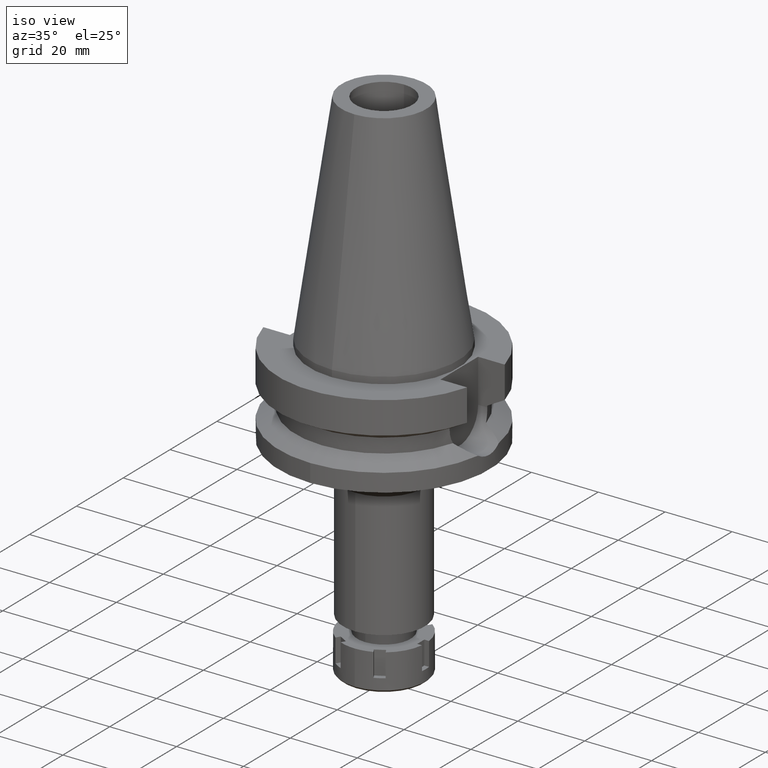
[diagram: clean part render]
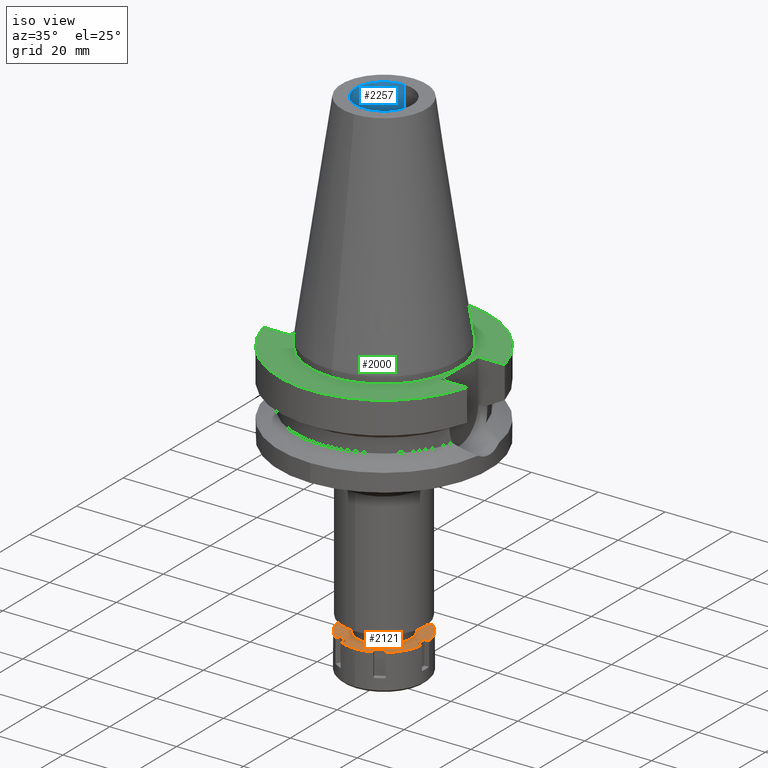
[diagram: same view with three faces highlighted in distinct colors, each labeled with its STEP entity id]
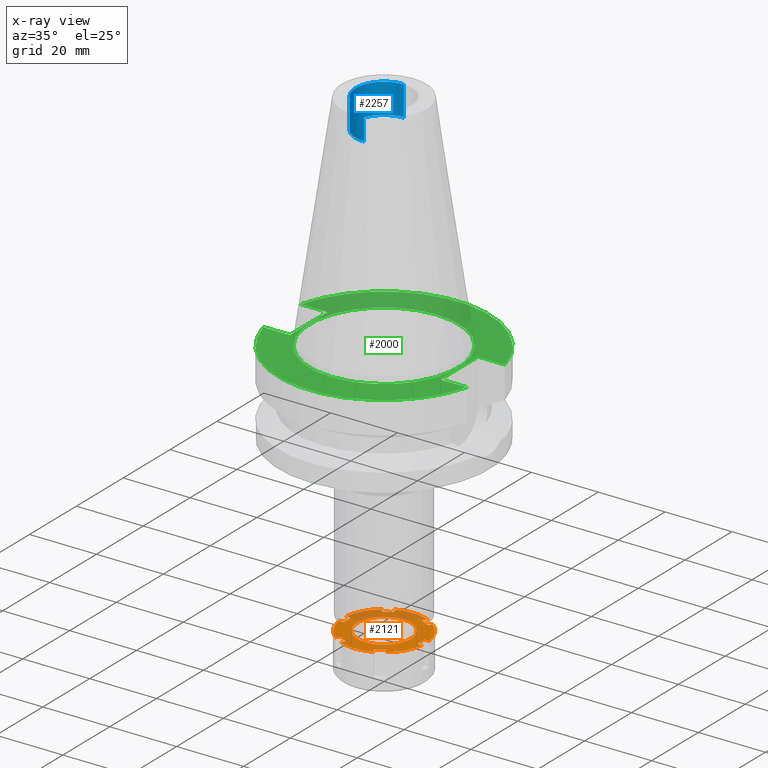
[diagram: x-ray of the same camera — body ghosted, the three highlighted faces saturated]
A machine part, iso view with three faces highlighted in distinct colors.
The next image is the same camera in x-ray (body ghosted, the three faces saturated) — at least one of them is partly hidden behind the body in this view.
Their STEP definitions:

[orange] entity #2121 — the highlighted planar face has unit normal (0, 0, -1).
#45 = CARTESIAN_POINT ( 'NONE',  ( -11.00000000000000000, 1.500000000000000000, 0.0000000000000000000 ) ) ;
#49 = CIRCLE ( 'NONE', #2600, 8.000000000000000000 ) ;
#59 = EDGE_CURVE ( 'NONE', #853, #1379, #3423, .T. ) ;
#71 = ORIENTED_EDGE ( 'NONE', *, *, #1414, .F. ) ;
#118 = DIRECTION ( 'NONE',  ( -0.6003099942937818456, -0.7997674104081758939, 0.0000000000000000000 ) ) ;
#124 = DIRECTION ( 'NONE',  ( 0.0000000000000000000, 0.0000000000000000000, -1.000000000000000000 ) ) ;
#138 = VERTEX_POINT ( 'NONE', #3579 ) ;
#142 = EDGE_CURVE ( 'NONE', #2744, #2098, #3513, .T. ) ;
#148 = DIRECTION ( 'NONE',  ( 0.0000000000000000000, -1.000000000000000000, 0.0000000000000000000 ) ) ;
#150 = DIRECTION ( 'NONE',  ( 0.0000000000000000000, 0.0000000000000000000, -1.000000000000000000 ) ) ;
#151 = VERTEX_POINT ( 'NONE', #3353 ) ;
#160 = ORIENTED_EDGE ( 'NONE', *, *, #3107, .F. ) ;
#332 = EDGE_CURVE ( 'NONE', #3599, #2292, #1119, .T. ) ;
#337 = DIRECTION ( 'NONE',  ( 0.5000000000004037881, -0.8660254037842055608, 0.0000000000000000000 ) ) ;
#338 = AXIS2_PLACEMENT_3D ( 'NONE', #2826, #1787, #2626 ) ;
#339 = LINE ( 'NONE', #1499, #1685 ) ;
#357 = EDGE_CURVE ( 'NONE', #3603, #2620, #3166, .T. ) ;
#364 = ORIENTED_EDGE ( 'NONE', *, *, #2520, .F. ) ;
#369 = VERTEX_POINT ( 'NONE', #3402 ) ;
#383 = CIRCLE ( 'NONE', #1865, 12.50000000000000000 ) ;
#387 = CARTESIAN_POINT ( 'NONE',  ( -11.00000000000000000, 1.500000000000000000, 0.0000000000000000000 ) ) ;
#401 = ORIENTED_EDGE ( 'NONE', *, *, #2905, .F. ) ;
#404 = DIRECTION ( 'NONE',  ( -0.5000000000004030110, -0.8660254037842058938, 0.0000000000000000000 ) ) ;
#406 = LINE ( 'NONE', #1218, #3488 ) ;
#458 = LINE ( 'NONE', #2768, #3165 ) ;
#509 = AXIS2_PLACEMENT_3D ( 'NONE', #3059, #2254, #600 ) ;
#514 = EDGE_CURVE ( 'NONE', #1766, #2584, #2229, .T. ) ;
#525 = EDGE_LOOP ( 'NONE', ( #1016, #2587 ) ) ;
#555 = CARTESIAN_POINT ( 'NONE',  ( -7.503874928671999456, 9.997092630101999333, 0.0000000000000000000 ) ) ;
#563 = DIRECTION ( 'NONE',  ( 0.5000000000000169864, -0.8660254037844288266, 0.0000000000000000000 ) ) ;
#571 = ORIENTED_EDGE ( 'NONE', *, *, #332, .F. ) ;
#600 = DIRECTION ( 'NONE',  ( 0.9927738916792689938, -0.1199999999999962208, 0.0000000000000000000 ) ) ;
#612 = VERTEX_POINT ( 'NONE', #3617 ) ;
#637 = CARTESIAN_POINT ( 'NONE',  ( 4.200961894323000934, -10.27627944162999896, 0.0000000000000000000 ) ) ;
#665 = DIRECTION ( 'NONE',  ( 0.0000000000000000000, 1.000000000000000000, 0.0000000000000000000 ) ) ;
#668 = AXIS2_PLACEMENT_3D ( 'NONE', #1629, #2746, #726 ) ;
#670 = EDGE_CURVE ( 'NONE', #2292, #151, #3595, .T. ) ;
#683 = EDGE_CURVE ( 'NONE', #2620, #2155, #458, .T. ) ;
#695 = EDGE_CURVE ( 'NONE', #890, #1968, #3312, .T. ) ;
#726 = DIRECTION ( 'NONE',  ( 0.0000000000000000000, 1.000000000000000000, 0.0000000000000000000 ) ) ;
#732 = EDGE_CURVE ( 'NONE', #3516, #1475, #2718, .T. ) ;
#745 = VERTEX_POINT ( 'NONE', #1430 ) ;
#788 = CIRCLE ( 'NONE', #1142, 12.50000000000000000 ) ;
#793 = DIRECTION ( 'NONE',  ( 1.000000000000000000, 2.646250338402999903E-14, 0.0000000000000000000 ) ) ;
#853 = VERTEX_POINT ( 'NONE', #45 ) ;
#859 = ORIENTED_EDGE ( 'NONE', *, *, #2740, .T. ) ;
#879 = DIRECTION ( 'NONE',  ( 0.0000000000000000000, -1.000000000000000000, 0.0000000000000000000 ) ) ;
#880 = DIRECTION ( 'NONE',  ( 0.0000000000000000000, -1.000000000000000000, 0.0000000000000000000 ) ) ;
#890 = VERTEX_POINT ( 'NONE', #3640 ) ;
#915 = VECTOR ( 'NONE', #1758, 1000.000000000000000 ) ;
#919 = EDGE_CURVE ( 'NONE', #1475, #1303, #1932, .T. ) ;
#924 = DIRECTION ( 'NONE',  ( -0.9927738916792689938, 0.1199999999999962208, 0.0000000000000000000 ) ) ;
#996 = ORIENTED_EDGE ( 'NONE', *, *, #670, .F. ) ;
#1016 = ORIENTED_EDGE ( 'NONE', *, *, #1737, .F. ) ;
#1020 = CARTESIAN_POINT ( 'NONE',  ( -11.00000000000000000, -1.500000000000000000, 0.0000000000000000000 ) ) ;
#1025 = EDGE_CURVE ( 'NONE', #151, #3229, #3632, .T. ) ;
#1042 = FACE_OUTER_BOUND ( 'NONE', #3241, .T. ) ;
#1119 = LINE ( 'NONE', #1191, #915 ) ;
#1142 = AXIS2_PLACEMENT_3D ( 'NONE', #1216, #3190, #665 ) ;
#1161 = VECTOR ( 'NONE', #2470, 1000.000000000000114 ) ;
#1166 = VERTEX_POINT ( 'NONE', #2731 ) ;
#1180 = CARTESIAN_POINT ( 'NONE',  ( -4.905798717318000435, 11.49709263010000093, 0.0000000000000000000 ) ) ;
#1191 = CARTESIAN_POINT ( 'NONE',  ( -4.200961894324001022, -10.27627944162999896, 0.0000000000000000000 ) ) ;
#1208 = VECTOR ( 'NONE', #2602, 1000.000000000000000 ) ;
#1214 = CARTESIAN_POINT ( 'NONE',  ( -4.200961894324001022, -10.27627944162999896, 0.0000000000000000000 ) ) ;
#1216 = CARTESIAN_POINT ( 'NONE',  ( 0.0000000000000000000, 0.0000000000000000000, 0.0000000000000000000 ) ) ;
#1218 = CARTESIAN_POINT ( 'NONE',  ( 4.200961894323000934, -10.27627944162999896, 0.0000000000000000000 ) ) ;
#1220 = AXIS2_PLACEMENT_3D ( 'NONE', #3180, #2070, #118 ) ;
#1259 = DIRECTION ( 'NONE',  ( 0.3924638973854109314, -0.9197674104082257385, 0.0000000000000000000 ) ) ;
#1289 = LINE ( 'NONE', #1020, #2683 ) ;
#1303 = VERTEX_POINT ( 'NONE', #1958 ) ;
#1320 = DIRECTION ( 'NONE',  ( 1.000000000000000000, -2.425729476869999993E-14, 0.0000000000000000000 ) ) ;
#1321 = VECTOR ( 'NONE', #3357, 1000.000000000000000 ) ;
#1332 = DIRECTION ( 'NONE',  ( -0.5000000000004037881, 0.8660254037842055608, 0.0000000000000000000 ) ) ;
#1335 = CARTESIAN_POINT ( 'NONE',  ( 7.503874928671999456, -9.997092630101999333, 0.0000000000000000000 ) ) ;
#1337 = CARTESIAN_POINT ( 'NONE',  ( -12.40967364599000078, -1.500000000000000000, 0.0000000000000000000 ) ) ;
#1341 = EDGE_CURVE ( 'NONE', #1166, #1509, #49, .T. ) ;
#1361 = CARTESIAN_POINT ( 'NONE',  ( 11.00000000000000000, 1.500000000000000000, 0.0000000000000000000 ) ) ;
#1379 = VERTEX_POINT ( 'NONE', #3636 ) ;
#1381 = EDGE_CURVE ( 'NONE', #612, #3516, #3360, .T. ) ;
#1393 = VECTOR ( 'NONE', #563, 1000.000000000000114 ) ;
#1414 = EDGE_CURVE ( 'NONE', #138, #2802, #2426, .T. ) ;
#1423 = ORIENTED_EDGE ( 'NONE', *, *, #3642, .F. ) ;
#1430 = CARTESIAN_POINT ( 'NONE',  ( 7.503874928671999456, 9.997092630101999333, 0.0000000000000000000 ) ) ;
#1434 = CARTESIAN_POINT ( 'NONE',  ( 4.905798717318000435, -11.49709263010000093, 0.0000000000000000000 ) ) ;
#1435 = VERTEX_POINT ( 'NONE', #637 ) ;
#1475 = VERTEX_POINT ( 'NONE', #1180 ) ;
#1479 = VERTEX_POINT ( 'NONE', #2858 ) ;
#1484 = VECTOR ( 'NONE', #3121, 1000.000000000000000 ) ;
#1499 = CARTESIAN_POINT ( 'NONE',  ( 6.799038105676999955, 8.776279441629000644, 0.0000000000000000000 ) ) ;
#1500 = AXIS2_PLACEMENT_3D ( 'NONE', #2946, #124, #3228 ) ;
#1509 = VERTEX_POINT ( 'NONE', #3480 ) ;
#1527 = EDGE_CURVE ( 'NONE', #1435, #1766, #406, .T. ) ;
#1561 = CARTESIAN_POINT ( 'NONE',  ( 0.0000000000000000000, 0.0000000000000000000, 0.0000000000000000000 ) ) ;
#1571 = CIRCLE ( 'NONE', #509, 12.50000000000000000 ) ;
#1589 = DIRECTION ( 'NONE',  ( 0.8660254037843856390, -0.5000000000000918154, 0.0000000000000000000 ) ) ;
#1601 = LINE ( 'NONE', #3535, #1161 ) ;
#1603 = DIRECTION ( 'NONE',  ( 0.0000000000000000000, 0.0000000000000000000, -1.000000000000000000 ) ) ;
#1621 = CARTESIAN_POINT ( 'NONE',  ( -4.200961894323000934, 10.27627944162999896, 0.0000000000000000000 ) ) ;
#1622 = VECTOR ( 'NONE', #404, 1000.000000000000114 ) ;
#1627 = VECTOR ( 'NONE', #793, 1000.000000000000000 ) ;
#1629 = CARTESIAN_POINT ( 'NONE',  ( 0.0000000000000000000, 0.0000000000000000000, 0.0000000000000000000 ) ) ;
#1665 = CARTESIAN_POINT ( 'NONE',  ( 7.503874928671999456, -9.997092630101999333, 0.0000000000000000000 ) ) ;
#1685 = VECTOR ( 'NONE', #2591, 1000.000000000000114 ) ;
#1712 = CARTESIAN_POINT ( 'NONE',  ( 0.0000000000000000000, 0.0000000000000000000, 0.0000000000000000000 ) ) ;
#1726 = ORIENTED_EDGE ( 'NONE', *, *, #3056, .F. ) ;
#1732 = CARTESIAN_POINT ( 'NONE',  ( 0.0000000000000000000, 0.0000000000000000000, 0.0000000000000000000 ) ) ;
#1737 = EDGE_CURVE ( 'NONE', #1509, #1166, #2844, .T. ) ;
#1758 = DIRECTION ( 'NONE',  ( -0.8660254037843856390, 0.5000000000000918154, 0.0000000000000000000 ) ) ;
#1764 = ORIENTED_EDGE ( 'NONE', *, *, #695, .F. ) ;
#1766 = VERTEX_POINT ( 'NONE', #1434 ) ;
#1787 = DIRECTION ( 'NONE',  ( 0.0000000000000000000, 0.0000000000000000000, -1.000000000000000000 ) ) ;
#1799 = ORIENTED_EDGE ( 'NONE', *, *, #514, .F. ) ;
#1832 = DIRECTION ( 'NONE',  ( -0.5000000000000169864, 0.8660254037844288266, 0.0000000000000000000 ) ) ;
#1865 = AXIS2_PLACEMENT_3D ( 'NONE', #1712, #2859, #880 ) ;
#1879 = DIRECTION ( 'NONE',  ( -0.5000000000000169864, -0.8660254037844288266, 0.0000000000000000000 ) ) ;
#1915 = LINE ( 'NONE', #1934, #2444 ) ;
#1932 = CIRCLE ( 'NONE', #338, 12.50000000000000355 ) ;
#1934 = CARTESIAN_POINT ( 'NONE',  ( -12.40967364599000078, 1.500000000000000000, 0.0000000000000000000 ) ) ;
#1958 = CARTESIAN_POINT ( 'NONE',  ( 0.0000000000000000000, 12.50000000000000000, 0.0000000000000000000 ) ) ;
#1967 = ORIENTED_EDGE ( 'NONE', *, *, #732, .F. ) ;
#1968 = VERTEX_POINT ( 'NONE', #3405 ) ;
#1969 = CIRCLE ( 'NONE', #1500, 12.50000000000000178 ) ;
#1998 = CARTESIAN_POINT ( 'NONE',  ( -6.799038105676999955, 8.776279441629000644, 0.0000000000000000000 ) ) ;
#2070 = DIRECTION ( 'NONE',  ( 0.0000000000000000000, 0.0000000000000000000, -1.000000000000000000 ) ) ;
#2073 = EDGE_CURVE ( 'NONE', #3562, #3599, #1601, .T. ) ;
#2079 = LINE ( 'NONE', #2649, #1622 ) ;
#2095 = CARTESIAN_POINT ( 'NONE',  ( 0.0000000000000000000, 0.0000000000000000000, 0.0000000000000000000 ) ) ;
#2098 = VERTEX_POINT ( 'NONE', #2456 ) ;
#2111 = CARTESIAN_POINT ( 'NONE',  ( 11.00000000000000000, 1.500000000000000000, 0.0000000000000000000 ) ) ;
#2121 = ADVANCED_FACE ( 'NONE', ( #1042, #2942 ), #2165, .F. ) ;
#2155 = VERTEX_POINT ( 'NONE', #2111 ) ;
#2158 = DIRECTION ( 'NONE',  ( -1.000000000000000000, -2.394226496649999866E-14, 0.0000000000000000000 ) ) ;
#2165 = PLANE ( 'NONE',  #3225 ) ;
#2166 = CARTESIAN_POINT ( 'NONE',  ( -6.799038105676999955, -8.776279441629000644, 0.0000000000000000000 ) ) ;
#2187 = ORIENTED_EDGE ( 'NONE', *, *, #2073, .F. ) ;
#2229 = CIRCLE ( 'NONE', #3459, 12.50000000000000355 ) ;
#2240 = CARTESIAN_POINT ( 'NONE',  ( -7.503874928671999456, 9.997092630101999333, 0.0000000000000000000 ) ) ;
#2253 = ORIENTED_EDGE ( 'NONE', *, *, #2316, .F. ) ;
#2254 = DIRECTION ( 'NONE',  ( 0.0000000000000000000, 0.0000000000000000000, -1.000000000000000000 ) ) ;
#2292 = VERTEX_POINT ( 'NONE', #3638 ) ;
#2295 = CARTESIAN_POINT ( 'NONE',  ( -4.200961894323000934, 10.27627944162999896, 0.0000000000000000000 ) ) ;
#2316 = EDGE_CURVE ( 'NONE', #2802, #612, #2473, .T. ) ;
#2367 = CARTESIAN_POINT ( 'NONE',  ( 11.00000000000000000, -1.500000000000000000, 0.0000000000000000000 ) ) ;
#2403 = VECTOR ( 'NONE', #1589, 1000.000000000000000 ) ;
#2426 = CIRCLE ( 'NONE', #2887, 12.50000000000000000 ) ;
#2444 = VECTOR ( 'NONE', #1320, 1000.000000000000000 ) ;
#2453 = LINE ( 'NONE', #1361, #1627 ) ;
#2456 = CARTESIAN_POINT ( 'NONE',  ( 6.799038105676999955, -8.776279441629000644, 0.0000000000000000000 ) ) ;
#2470 = DIRECTION ( 'NONE',  ( 0.5000000000004037881, 0.8660254037842055608, 0.0000000000000000000 ) ) ;
#2473 = LINE ( 'NONE', #2240, #1393 ) ;
#2485 = EDGE_CURVE ( 'NONE', #2584, #3562, #383, .T. ) ;
#2486 = CARTESIAN_POINT ( 'NONE',  ( 6.799038105676999955, -8.776279441629000644, 0.0000000000000000000 ) ) ;
#2520 = EDGE_CURVE ( 'NONE', #1968, #745, #339, .T. ) ;
#2523 = CARTESIAN_POINT ( 'NONE',  ( 12.40967364599000078, -1.500000000000000000, 0.0000000000000000000 ) ) ;
#2550 = ORIENTED_EDGE ( 'NONE', *, *, #142, .F. ) ;
#2568 = VECTOR ( 'NONE', #1832, 1000.000000000000114 ) ;
#2584 = VERTEX_POINT ( 'NONE', #3517 ) ;
#2587 = ORIENTED_EDGE ( 'NONE', *, *, #1341, .F. ) ;
#2590 = DIRECTION ( 'NONE',  ( 0.0000000000000000000, 0.0000000000000000000, -1.000000000000000000 ) ) ;
#2591 = DIRECTION ( 'NONE',  ( 0.5000000000000169864, 0.8660254037844288266, 0.0000000000000000000 ) ) ;
#2600 = AXIS2_PLACEMENT_3D ( 'NONE', #1732, #3137, #879 ) ;
#2602 = DIRECTION ( 'NONE',  ( 0.0000000000000000000, -1.000000000000000000, 0.0000000000000000000 ) ) ;
#2604 = ORIENTED_EDGE ( 'NONE', *, *, #2821, .F. ) ;
#2620 = VERTEX_POINT ( 'NONE', #2367 ) ;
#2626 = DIRECTION ( 'NONE',  ( -0.3924638973854109314, 0.9197674104082257385, 0.0000000000000000000 ) ) ;
#2649 = CARTESIAN_POINT ( 'NONE',  ( 4.905798717319999724, 11.49709263010000093, 0.0000000000000000000 ) ) ;
#2668 = ORIENTED_EDGE ( 'NONE', *, *, #357, .T. ) ;
#2683 = VECTOR ( 'NONE', #2158, 1000.000000000000000 ) ;
#2718 = LINE ( 'NONE', #1621, #3044 ) ;
#2731 = CARTESIAN_POINT ( 'NONE',  ( 0.0000000000000000000, -8.000000000000000000, 0.0000000000000000000 ) ) ;
#2740 = EDGE_CURVE ( 'NONE', #1379, #3229, #1289, .T. ) ;
#2744 = VERTEX_POINT ( 'NONE', #1665 ) ;
#2746 = DIRECTION ( 'NONE',  ( 0.0000000000000000000, 0.0000000000000000000, 1.000000000000000000 ) ) ;
#2768 = CARTESIAN_POINT ( 'NONE',  ( 11.00000000000000000, -1.500000000000000000, 0.0000000000000000000 ) ) ;
#2802 = VERTEX_POINT ( 'NONE', #555 ) ;
#2803 = CARTESIAN_POINT ( 'NONE',  ( 0.0000000000000000000, 0.0000000000000000000, 0.0000000000000000000 ) ) ;
#2810 = DIRECTION ( 'NONE',  ( -1.000000000000000000, 2.268214575773999827E-14, 0.0000000000000000000 ) ) ;
#2811 = ORIENTED_EDGE ( 'NONE', *, *, #683, .T. ) ;
#2821 = EDGE_CURVE ( 'NONE', #2098, #1435, #3631, .T. ) ;
#2826 = CARTESIAN_POINT ( 'NONE',  ( 0.0000000000000000000, 0.0000000000000000000, 0.0000000000000000000 ) ) ;
#2832 = ORIENTED_EDGE ( 'NONE', *, *, #919, .F. ) ;
#2844 = CIRCLE ( 'NONE', #668, 8.000000000000000000 ) ;
#2858 = CARTESIAN_POINT ( 'NONE',  ( 4.905798717319999724, 11.49709263010000093, 0.0000000000000000000 ) ) ;
#2859 = DIRECTION ( 'NONE',  ( 0.0000000000000000000, 0.0000000000000000000, -1.000000000000000000 ) ) ;
#2874 = EDGE_CURVE ( 'NONE', #2155, #369, #2453, .T. ) ;
#2887 = AXIS2_PLACEMENT_3D ( 'NONE', #2803, #2590, #924 ) ;
#2905 = EDGE_CURVE ( 'NONE', #3603, #2744, #1571, .T. ) ;
#2942 = FACE_BOUND ( 'NONE', #525, .T. ) ;
#2945 = ORIENTED_EDGE ( 'NONE', *, *, #1381, .F. ) ;
#2946 = CARTESIAN_POINT ( 'NONE',  ( 0.0000000000000000000, 0.0000000000000000000, 0.0000000000000000000 ) ) ;
#2981 = CARTESIAN_POINT ( 'NONE',  ( 4.200961894324001022, 10.27627944162999896, 0.0000000000000000000 ) ) ;
#3044 = VECTOR ( 'NONE', #1332, 1000.000000000000114 ) ;
#3056 = EDGE_CURVE ( 'NONE', #1479, #890, #2079, .T. ) ;
#3059 = CARTESIAN_POINT ( 'NONE',  ( 0.0000000000000000000, 0.0000000000000000000, 0.0000000000000000000 ) ) ;
#3107 = EDGE_CURVE ( 'NONE', #1303, #1479, #788, .T. ) ;
#3121 = DIRECTION ( 'NONE',  ( 0.8660254037843856390, 0.5000000000000918154, 0.0000000000000000000 ) ) ;
#3137 = DIRECTION ( 'NONE',  ( 0.0000000000000000000, 0.0000000000000000000, 1.000000000000000000 ) ) ;
#3165 = VECTOR ( 'NONE', #3263, 1000.000000000000000 ) ;
#3166 = LINE ( 'NONE', #2523, #3220 ) ;
#3172 = EDGE_CURVE ( 'NONE', #138, #853, #1915, .T. ) ;
#3180 = CARTESIAN_POINT ( 'NONE',  ( 0.0000000000000000000, 0.0000000000000000000, 0.0000000000000000000 ) ) ;
#3190 = DIRECTION ( 'NONE',  ( 0.0000000000000000000, 0.0000000000000000000, -1.000000000000000000 ) ) ;
#3220 = VECTOR ( 'NONE', #2810, 1000.000000000000000 ) ;
#3225 = AXIS2_PLACEMENT_3D ( 'NONE', #1561, #1603, #148 ) ;
#3228 = DIRECTION ( 'NONE',  ( 0.6003099942937818456, 0.7997674104081758939, 0.0000000000000000000 ) ) ;
#3229 = VERTEX_POINT ( 'NONE', #1337 ) ;
#3241 = EDGE_LOOP ( 'NONE', ( #160, #2832, #1967, #2945, #2253, #71, #3421, #3253, #859, #3338, #996, #571, #2187, #3615, #1799, #3374, #2604, #2550, #401, #2668, #2811, #3378, #1423, #364, #1764, #1726 ) ) ;
#3246 = CARTESIAN_POINT ( 'NONE',  ( 12.40967364599000078, -1.500000000000000000, 0.0000000000000000000 ) ) ;
#3253 = ORIENTED_EDGE ( 'NONE', *, *, #59, .T. ) ;
#3263 = DIRECTION ( 'NONE',  ( 0.0000000000000000000, 1.000000000000000000, 0.0000000000000000000 ) ) ;
#3312 = LINE ( 'NONE', #2981, #2403 ) ;
#3338 = ORIENTED_EDGE ( 'NONE', *, *, #1025, .F. ) ;
#3353 = CARTESIAN_POINT ( 'NONE',  ( -7.503874928671999456, -9.997092630101999333, 0.0000000000000000000 ) ) ;
#3357 = DIRECTION ( 'NONE',  ( -0.8660254037843856390, -0.5000000000000918154, 0.0000000000000000000 ) ) ;
#3360 = LINE ( 'NONE', #1998, #1484 ) ;
#3374 = ORIENTED_EDGE ( 'NONE', *, *, #1527, .F. ) ;
#3378 = ORIENTED_EDGE ( 'NONE', *, *, #2874, .T. ) ;
#3402 = CARTESIAN_POINT ( 'NONE',  ( 12.40967364599000078, 1.500000000000000000, 0.0000000000000000000 ) ) ;
#3405 = CARTESIAN_POINT ( 'NONE',  ( 6.799038105676999955, 8.776279441629000644, 0.0000000000000000000 ) ) ;
#3421 = ORIENTED_EDGE ( 'NONE', *, *, #3172, .T. ) ;
#3423 = LINE ( 'NONE', #387, #1208 ) ;
#3459 = AXIS2_PLACEMENT_3D ( 'NONE', #2095, #150, #1259 ) ;
#3480 = CARTESIAN_POINT ( 'NONE',  ( 0.0000000000000000000, 8.000000000000000000, 0.0000000000000000000 ) ) ;
#3488 = VECTOR ( 'NONE', #337, 1000.000000000000114 ) ;
#3506 = VECTOR ( 'NONE', #1879, 1000.000000000000114 ) ;
#3511 = CARTESIAN_POINT ( 'NONE',  ( -4.905798717319999724, -11.49709263010000093, 0.0000000000000000000 ) ) ;
#3513 = LINE ( 'NONE', #1335, #2568 ) ;
#3516 = VERTEX_POINT ( 'NONE', #2295 ) ;
#3517 = CARTESIAN_POINT ( 'NONE',  ( 0.0000000000000000000, -12.50000000000000000, 0.0000000000000000000 ) ) ;
#3535 = CARTESIAN_POINT ( 'NONE',  ( -4.905798717319999724, -11.49709263010000093, 0.0000000000000000000 ) ) ;
#3562 = VERTEX_POINT ( 'NONE', #3511 ) ;
#3579 = CARTESIAN_POINT ( 'NONE',  ( -12.40967364599000078, 1.500000000000000000, 0.0000000000000000000 ) ) ;
#3595 = LINE ( 'NONE', #2166, #3506 ) ;
#3599 = VERTEX_POINT ( 'NONE', #1214 ) ;
#3603 = VERTEX_POINT ( 'NONE', #3246 ) ;
#3615 = ORIENTED_EDGE ( 'NONE', *, *, #2485, .F. ) ;
#3617 = CARTESIAN_POINT ( 'NONE',  ( -6.799038105676999955, 8.776279441629000644, 0.0000000000000000000 ) ) ;
#3631 = LINE ( 'NONE', #2486, #1321 ) ;
#3632 = CIRCLE ( 'NONE', #1220, 12.50000000000000178 ) ;
#3636 = CARTESIAN_POINT ( 'NONE',  ( -11.00000000000000000, -1.500000000000000000, 0.0000000000000000000 ) ) ;
#3638 = CARTESIAN_POINT ( 'NONE',  ( -6.799038105676999955, -8.776279441629000644, 0.0000000000000000000 ) ) ;
#3640 = CARTESIAN_POINT ( 'NONE',  ( 4.200961894324001022, 10.27627944162999896, 0.0000000000000000000 ) ) ;
#3642 = EDGE_CURVE ( 'NONE', #745, #369, #1969, .T. ) ;

[blue] entity #2257 — the highlighted cylindrical surface (edge-blend (fillet) strip) has radius 8.5 mm, axis along (0, 0, -1).
#33 = DIRECTION ( 'NONE',  ( 0.0000000000000000000, -1.000000000000000000, 0.0000000000000000000 ) ) ;
#227 = ORIENTED_EDGE ( 'NONE', *, *, #455, .T. ) ;
#280 = AXIS2_PLACEMENT_3D ( 'NONE', #1452, #2583, #33 ) ;
#405 = VERTEX_POINT ( 'NONE', #3386 ) ;
#425 = LINE ( 'NONE', #3270, #1078 ) ;
#433 = VECTOR ( 'NONE', #2797, 1000.000000000000000 ) ;
#455 = EDGE_CURVE ( 'NONE', #405, #2080, #1226, .T. ) ;
#574 = CARTESIAN_POINT ( 'NONE',  ( 0.0000000000000000000, -8.500000000000000000, 56.39999999999999858 ) ) ;
#713 = CARTESIAN_POINT ( 'NONE',  ( 0.0000000000000000000, 8.500000000000000000, 56.39999999999999858 ) ) ;
#752 = CYLINDRICAL_SURFACE ( 'NONE', #2924, 8.500000000000000000 ) ;
#769 = DIRECTION ( 'NONE',  ( 0.0000000000000000000, 0.0000000000000000000, -1.000000000000000000 ) ) ;
#875 = DIRECTION ( 'NONE',  ( 0.0000000000000000000, 0.0000000000000000000, 1.000000000000000000 ) ) ;
#985 = CARTESIAN_POINT ( 'NONE',  ( 0.0000000000000000000, 8.500000000000000000, 65.40000000000000568 ) ) ;
#1078 = VECTOR ( 'NONE', #3530, 1000.000000000000000 ) ;
#1226 = CIRCLE ( 'NONE', #280, 8.500000000000000000 ) ;
#1272 = ORIENTED_EDGE ( 'NONE', *, *, #1636, .T. ) ;
#1452 = CARTESIAN_POINT ( 'NONE',  ( 0.0000000000000000000, 2.117046921685999950E-14, 56.39999999999999858 ) ) ;
#1531 = VERTEX_POINT ( 'NONE', #3445 ) ;
#1636 = EDGE_CURVE ( 'NONE', #2080, #2566, #425, .T. ) ;
#1675 = ORIENTED_EDGE ( 'NONE', *, *, #1806, .F. ) ;
#1701 = DIRECTION ( 'NONE',  ( 0.0000000000000000000, 1.000000000000000000, 0.0000000000000000000 ) ) ;
#1757 = EDGE_CURVE ( 'NONE', #2566, #1531, #2667, .T. ) ;
#1806 = EDGE_CURVE ( 'NONE', #405, #1531, #2759, .T. ) ;
#2080 = VERTEX_POINT ( 'NONE', #713 ) ;
#2157 = EDGE_LOOP ( 'NONE', ( #3474, #1675, #227, #1272 ) ) ;
#2257 = ADVANCED_FACE ( 'NONE', ( #2441 ), #752, .F. ) ;
#2273 = CARTESIAN_POINT ( 'NONE',  ( 0.0000000000000000000, 2.117046921685999950E-14, 65.40000000000000568 ) ) ;
#2441 = FACE_OUTER_BOUND ( 'NONE', #2157, .T. ) ;
#2566 = VERTEX_POINT ( 'NONE', #985 ) ;
#2583 = DIRECTION ( 'NONE',  ( 0.0000000000000000000, 0.0000000000000000000, -1.000000000000000000 ) ) ;
#2644 = DIRECTION ( 'NONE',  ( 0.0000000000000000000, -1.000000000000000000, 0.0000000000000000000 ) ) ;
#2667 = CIRCLE ( 'NONE', #3602, 8.500000000000000000 ) ;
#2759 = LINE ( 'NONE', #574, #433 ) ;
#2797 = DIRECTION ( 'NONE',  ( 0.0000000000000000000, 0.0000000000000000000, 1.000000000000000000 ) ) ;
#2924 = AXIS2_PLACEMENT_3D ( 'NONE', #3294, #769, #2644 ) ;
#3270 = CARTESIAN_POINT ( 'NONE',  ( 0.0000000000000000000, 8.500000000000000000, 56.39999999999999858 ) ) ;
#3294 = CARTESIAN_POINT ( 'NONE',  ( 0.0000000000000000000, 2.117046921685999950E-14, 72.87000000000000455 ) ) ;
#3386 = CARTESIAN_POINT ( 'NONE',  ( 0.0000000000000000000, -8.500000000000000000, 56.39999999999999858 ) ) ;
#3445 = CARTESIAN_POINT ( 'NONE',  ( 0.0000000000000000000, -8.500000000000000000, 65.40000000000000568 ) ) ;
#3474 = ORIENTED_EDGE ( 'NONE', *, *, #1757, .T. ) ;
#3530 = DIRECTION ( 'NONE',  ( 0.0000000000000000000, 0.0000000000000000000, 1.000000000000000000 ) ) ;
#3602 = AXIS2_PLACEMENT_3D ( 'NONE', #2273, #875, #1701 ) ;

[green] entity #2000 — the highlighted planar face has unit normal (0, 0, -1).
#65 = DIRECTION ( 'NONE',  ( 0.0000000000000000000, 0.0000000000000000000, 1.000000000000000000 ) ) ;
#93 = VERTEX_POINT ( 'NONE', #1514 ) ;
#161 = EDGE_CURVE ( 'NONE', #478, #93, #2501, .T. ) ;
#220 = FACE_BOUND ( 'NONE', #1073, .T. ) ;
#296 = VERTEX_POINT ( 'NONE', #2693 ) ;
#360 = VECTOR ( 'NONE', #891, 1000.000000000000000 ) ;
#362 = ORIENTED_EDGE ( 'NONE', *, *, #953, .F. ) ;
#476 = LINE ( 'NONE', #1097, #1279 ) ;
#478 = VERTEX_POINT ( 'NONE', #2686 ) ;
#501 = VERTEX_POINT ( 'NONE', #3524 ) ;
#552 = VERTEX_POINT ( 'NONE', #3244 ) ;
#596 = ORIENTED_EDGE ( 'NONE', *, *, #2743, .F. ) ;
#604 = CARTESIAN_POINT ( 'NONE',  ( 0.0000000000000000000, 2.117046921685999950E-14, -2.000000000000000000 ) ) ;
#689 = VERTEX_POINT ( 'NONE', #1370 ) ;
#698 = EDGE_CURVE ( 'NONE', #2050, #296, #476, .T. ) ;
#750 = DIRECTION ( 'NONE',  ( 0.0000000000000000000, 0.0000000000000000000, -1.000000000000000000 ) ) ;
#840 = ORIENTED_EDGE ( 'NONE', *, *, #2153, .T. ) ;
#891 = DIRECTION ( 'NONE',  ( -1.000000000000000000, -3.550916904668000126E-14, 0.0000000000000000000 ) ) ;
#913 = VECTOR ( 'NONE', #926, 1000.000000000000000 ) ;
#926 = DIRECTION ( 'NONE',  ( 1.000000000000000000, -3.506251283225999947E-14, 0.0000000000000000000 ) ) ;
#953 = EDGE_CURVE ( 'NONE', #501, #2933, #2863, .T. ) ;
#1024 = DIRECTION ( 'NONE',  ( 1.000000000000000000, 3.573249715389999860E-14, 0.0000000000000000000 ) ) ;
#1073 = EDGE_LOOP ( 'NONE', ( #596, #362 ) ) ;
#1097 = CARTESIAN_POINT ( 'NONE',  ( 22.50000000000000000, 8.050000000000000711, -2.000000000000000000 ) ) ;
#1105 = VERTEX_POINT ( 'NONE', #3011 ) ;
#1121 = DIRECTION ( 'NONE',  ( 0.0000000000000000000, 1.000000000000000000, 0.0000000000000000000 ) ) ;
#1203 = EDGE_CURVE ( 'NONE', #296, #3095, #1602, .T. ) ;
#1204 = DIRECTION ( 'NONE',  ( 0.0000000000000000000, -1.000000000000000000, 0.0000000000000000000 ) ) ;
#1221 = DIRECTION ( 'NONE',  ( 0.0000000000000000000, 0.0000000000000000000, -1.000000000000000000 ) ) ;
#1247 = EDGE_LOOP ( 'NONE', ( #840, #1939, #1300, #1489, #1854, #1662, #2066, #3574 ) ) ;
#1279 = VECTOR ( 'NONE', #2498, 1000.000000000000000 ) ;
#1280 = CARTESIAN_POINT ( 'NONE',  ( -22.50000000000000000, -8.050000000000000711, -2.000000000000000000 ) ) ;
#1300 = ORIENTED_EDGE ( 'NONE', *, *, #1203, .F. ) ;
#1315 = EDGE_CURVE ( 'NONE', #552, #478, #2513, .T. ) ;
#1328 = CARTESIAN_POINT ( 'NONE',  ( 22.50000000000000000, 8.050000000000000711, -2.000000000000000000 ) ) ;
#1370 = CARTESIAN_POINT ( 'NONE',  ( -22.50000000000000000, -8.050000000000000711, -2.000000000000000000 ) ) ;
#1373 = DIRECTION ( 'NONE',  ( 0.0000000000000000000, 1.000000000000000000, 0.0000000000000000000 ) ) ;
#1489 = ORIENTED_EDGE ( 'NONE', *, *, #698, .F. ) ;
#1514 = CARTESIAN_POINT ( 'NONE',  ( 30.45402272279000044, 8.050000000000000711, -2.000000000000000000 ) ) ;
#1567 = CIRCLE ( 'NONE', #2503, 22.22500000000000142 ) ;
#1602 = LINE ( 'NONE', #3536, #2655 ) ;
#1616 = FACE_OUTER_BOUND ( 'NONE', #1247, .T. ) ;
#1662 = ORIENTED_EDGE ( 'NONE', *, *, #161, .F. ) ;
#1683 = DIRECTION ( 'NONE',  ( 0.0000000000000000000, 0.0000000000000000000, 1.000000000000000000 ) ) ;
#1759 = VECTOR ( 'NONE', #1860, 1000.000000000000000 ) ;
#1854 = ORIENTED_EDGE ( 'NONE', *, *, #2412, .T. ) ;
#1860 = DIRECTION ( 'NONE',  ( -1.000000000000000000, 3.550916904668000126E-14, 0.0000000000000000000 ) ) ;
#1914 = CIRCLE ( 'NONE', #3209, 31.50000000000000000 ) ;
#1939 = ORIENTED_EDGE ( 'NONE', *, *, #2429, .F. ) ;
#2000 = ADVANCED_FACE ( 'NONE', ( #1616, #220 ), #3275, .F. ) ;
#2050 = VERTEX_POINT ( 'NONE', #1328 ) ;
#2051 = CARTESIAN_POINT ( 'NONE',  ( 22.50000000000000000, 8.050000000000000711, -2.000000000000000000 ) ) ;
#2066 = ORIENTED_EDGE ( 'NONE', *, *, #1315, .F. ) ;
#2153 = EDGE_CURVE ( 'NONE', #689, #1105, #2372, .T. ) ;
#2174 = CARTESIAN_POINT ( 'NONE',  ( 0.0000000000000000000, 2.117046921685999950E-14, -2.000000000000000000 ) ) ;
#2185 = CARTESIAN_POINT ( 'NONE',  ( 0.0000000000000000000, 2.117046921685999950E-14, -2.000000000000000000 ) ) ;
#2372 = LINE ( 'NONE', #1280, #1759 ) ;
#2380 = CARTESIAN_POINT ( 'NONE',  ( 30.45402272279000044, -8.050000000000000711, -2.000000000000000000 ) ) ;
#2409 = DIRECTION ( 'NONE',  ( 0.0000000000000000000, -1.000000000000000000, 0.0000000000000000000 ) ) ;
#2412 = EDGE_CURVE ( 'NONE', #2050, #93, #2824, .T. ) ;
#2429 = EDGE_CURVE ( 'NONE', #3095, #1105, #1914, .T. ) ;
#2498 = DIRECTION ( 'NONE',  ( 0.0000000000000000000, -1.000000000000000000, 0.0000000000000000000 ) ) ;
#2501 = CIRCLE ( 'NONE', #3494, 31.50000000000000000 ) ;
#2503 = AXIS2_PLACEMENT_3D ( 'NONE', #2174, #1683, #2777 ) ;
#2513 = LINE ( 'NONE', #3082, #360 ) ;
#2530 = CARTESIAN_POINT ( 'NONE',  ( 0.0000000000000000000, 22.22500000000000142, -2.000000000000000000 ) ) ;
#2655 = VECTOR ( 'NONE', #1024, 1000.000000000000000 ) ;
#2686 = CARTESIAN_POINT ( 'NONE',  ( -30.45402272279000044, 8.050000000000000711, -2.000000000000000000 ) ) ;
#2693 = CARTESIAN_POINT ( 'NONE',  ( 22.50000000000000000, -8.050000000000000711, -2.000000000000000000 ) ) ;
#2743 = EDGE_CURVE ( 'NONE', #2933, #501, #1567, .T. ) ;
#2777 = DIRECTION ( 'NONE',  ( 0.0000000000000000000, 1.000000000000000000, 0.0000000000000000000 ) ) ;
#2824 = LINE ( 'NONE', #2051, #913 ) ;
#2863 = CIRCLE ( 'NONE', #3340, 22.22500000000000142 ) ;
#2933 = VERTEX_POINT ( 'NONE', #2530 ) ;
#2941 = CARTESIAN_POINT ( 'NONE',  ( 0.0000000000000000000, 2.117046921685999950E-14, -2.000000000000000000 ) ) ;
#2974 = CARTESIAN_POINT ( 'NONE',  ( 0.0000000000000000000, 1.200153863163999924E-14, -2.000000000000000000 ) ) ;
#3011 = CARTESIAN_POINT ( 'NONE',  ( -30.45402272279000044, -8.050000000000000711, -2.000000000000000000 ) ) ;
#3082 = CARTESIAN_POINT ( 'NONE',  ( -22.50000000000000000, 8.050000000000000711, -2.000000000000000000 ) ) ;
#3095 = VERTEX_POINT ( 'NONE', #2380 ) ;
#3132 = LINE ( 'NONE', #3647, #3492 ) ;
#3163 = AXIS2_PLACEMENT_3D ( 'NONE', #2974, #750, #2409 ) ;
#3209 = AXIS2_PLACEMENT_3D ( 'NONE', #604, #1221, #1204 ) ;
#3239 = DIRECTION ( 'NONE',  ( 0.0000000000000000000, -1.000000000000000000, 0.0000000000000000000 ) ) ;
#3244 = CARTESIAN_POINT ( 'NONE',  ( -22.50000000000000000, 8.050000000000000711, -2.000000000000000000 ) ) ;
#3275 = PLANE ( 'NONE',  #3163 ) ;
#3313 = DIRECTION ( 'NONE',  ( 0.0000000000000000000, 0.0000000000000000000, -1.000000000000000000 ) ) ;
#3340 = AXIS2_PLACEMENT_3D ( 'NONE', #2941, #65, #3239 ) ;
#3492 = VECTOR ( 'NONE', #1121, 1000.000000000000000 ) ;
#3494 = AXIS2_PLACEMENT_3D ( 'NONE', #2185, #3313, #1373 ) ;
#3522 = EDGE_CURVE ( 'NONE', #689, #552, #3132, .T. ) ;
#3524 = CARTESIAN_POINT ( 'NONE',  ( 0.0000000000000000000, -22.22500000000000142, -2.000000000000000000 ) ) ;
#3536 = CARTESIAN_POINT ( 'NONE',  ( 22.50000000000000000, -8.050000000000000711, -2.000000000000000000 ) ) ;
#3574 = ORIENTED_EDGE ( 'NONE', *, *, #3522, .F. ) ;
#3647 = CARTESIAN_POINT ( 'NONE',  ( -22.50000000000000000, -8.050000000000000711, -2.000000000000000000 ) ) ;